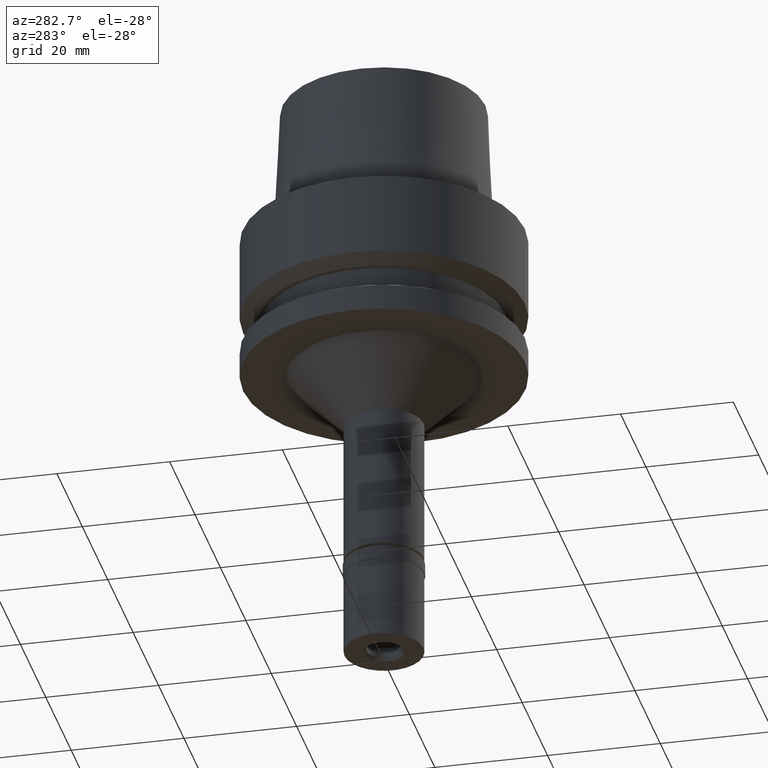
[diagram: clean part render]
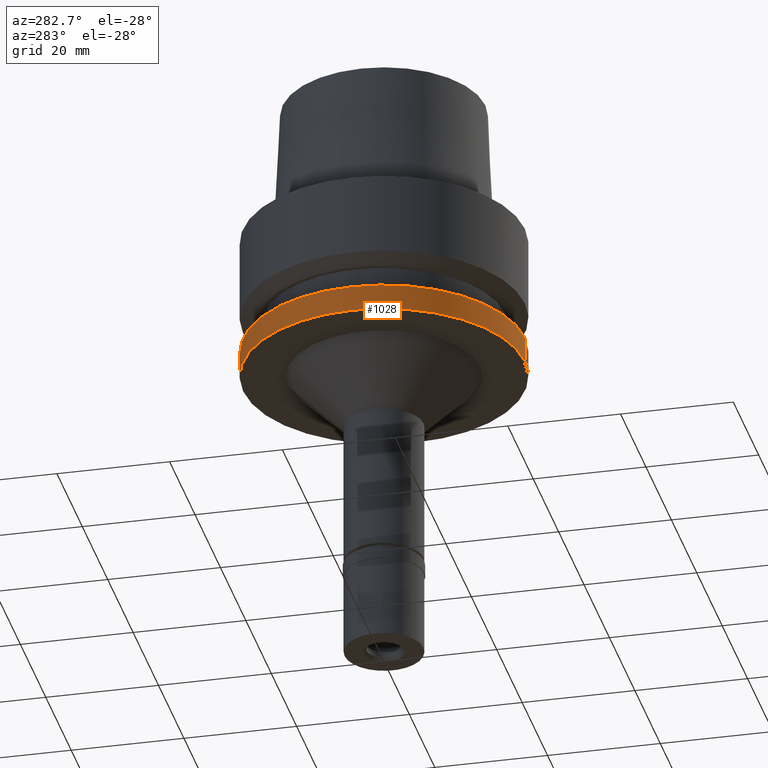
[diagram: same view with one face highlighted and labeled with its STEP entity id]
A machine part, auxiliary view. The second image highlights one B-rep face of the part: STEP entity #1028.
In plain terms, the highlighted cylindrical surface (partial cylindrical patch) has radius 25 mm, axis along (0, 0, 1).
Its self-contained STEP definition (entity closure, byte-faithful):
#36 = CARTESIAN_POINT ( 'NONE',  ( 0.0000000000000000000, 0.0000000000000000000, -26.00000000000000000 ) ) ;
#54 = DIRECTION ( 'NONE',  ( 0.0000000000000000000, 0.0000000000000000000, 1.000000000000000000 ) ) ;
#206 = EDGE_CURVE ( 'NONE', #338, #1825, #1878, .T. ) ;
#305 = LINE ( 'NONE', #1333, #2056 ) ;
#338 = VERTEX_POINT ( 'NONE', #2361 ) ;
#355 = VECTOR ( 'NONE', #1626, 1000.000000000000000 ) ;
#464 = DIRECTION ( 'NONE',  ( 0.0000000000000000000, 0.0000000000000000000, -1.000000000000000000 ) ) ;
#489 = CIRCLE ( 'NONE', #2574, 25.00000000000000000 ) ;
#505 = CARTESIAN_POINT ( 'NONE',  ( 0.0000000000000000000, 0.0000000000000000000, -21.38164558085999900 ) ) ;
#516 = FACE_OUTER_BOUND ( 'NONE', #2260, .T. ) ;
#525 = EDGE_CURVE ( 'NONE', #1239, #1825, #1427, .T. ) ;
#693 = CARTESIAN_POINT ( 'NONE',  ( 0.0000000000000000000, 25.00000000000000000, -21.38164558085999900 ) ) ;
#744 = CARTESIAN_POINT ( 'NONE',  ( 0.0000000000000000000, 0.0000000000000000000, -81.04999999999999716 ) ) ;
#769 = ORIENTED_EDGE ( 'NONE', *, *, #1793, .T. ) ;
#817 = ORIENTED_EDGE ( 'NONE', *, *, #206, .T. ) ;
#893 = DIRECTION ( 'NONE',  ( 0.0000000000000000000, 1.000000000000000000, 0.0000000000000000000 ) ) ;
#1028 = ADVANCED_FACE ( 'NONE', ( #516 ), #1829, .T. ) ;
#1089 = DIRECTION ( 'NONE',  ( 0.0000000000000000000, 0.0000000000000000000, -1.000000000000000000 ) ) ;
#1239 = VERTEX_POINT ( 'NONE', #1812 ) ;
#1306 = CARTESIAN_POINT ( 'NONE',  ( 0.0000000000000000000, -25.00000000000000000, -26.00000000000000000 ) ) ;
#1333 = CARTESIAN_POINT ( 'NONE',  ( 0.0000000000000000000, 25.00000000000000000, -21.38164558085999900 ) ) ;
#1346 = AXIS2_PLACEMENT_3D ( 'NONE', #36, #54, #893 ) ;
#1427 = LINE ( 'NONE', #1882, #355 ) ;
#1590 = DIRECTION ( 'NONE',  ( 0.0000000000000000000, 1.000000000000000000, 0.0000000000000000000 ) ) ;
#1602 = EDGE_CURVE ( 'NONE', #1239, #1788, #489, .T. ) ;
#1626 = DIRECTION ( 'NONE',  ( 0.0000000000000000000, 0.0000000000000000000, -1.000000000000000000 ) ) ;
#1788 = VERTEX_POINT ( 'NONE', #693 ) ;
#1793 = EDGE_CURVE ( 'NONE', #1788, #338, #305, .T. ) ;
#1812 = CARTESIAN_POINT ( 'NONE',  ( 0.0000000000000000000, -25.00000000000000000, -21.38164558085999900 ) ) ;
#1825 = VERTEX_POINT ( 'NONE', #1306 ) ;
#1829 = CYLINDRICAL_SURFACE ( 'NONE', #2520, 25.00000000000000000 ) ;
#1878 = CIRCLE ( 'NONE', #1346, 25.00000000000000000 ) ;
#1882 = CARTESIAN_POINT ( 'NONE',  ( 0.0000000000000000000, -25.00000000000000000, -21.38164558085999900 ) ) ;
#1943 = DIRECTION ( 'NONE',  ( 0.0000000000000000000, -1.000000000000000000, 0.0000000000000000000 ) ) ;
#2056 = VECTOR ( 'NONE', #1089, 1000.000000000000000 ) ;
#2260 = EDGE_LOOP ( 'NONE', ( #817, #2547, #2349, #769 ) ) ;
#2349 = ORIENTED_EDGE ( 'NONE', *, *, #1602, .T. ) ;
#2361 = CARTESIAN_POINT ( 'NONE',  ( 0.0000000000000000000, 25.00000000000000000, -26.00000000000000000 ) ) ;
#2520 = AXIS2_PLACEMENT_3D ( 'NONE', #744, #2596, #1590 ) ;
#2547 = ORIENTED_EDGE ( 'NONE', *, *, #525, .F. ) ;
#2574 = AXIS2_PLACEMENT_3D ( 'NONE', #505, #464, #1943 ) ;
#2596 = DIRECTION ( 'NONE',  ( 0.0000000000000000000, 0.0000000000000000000, 1.000000000000000000 ) ) ;